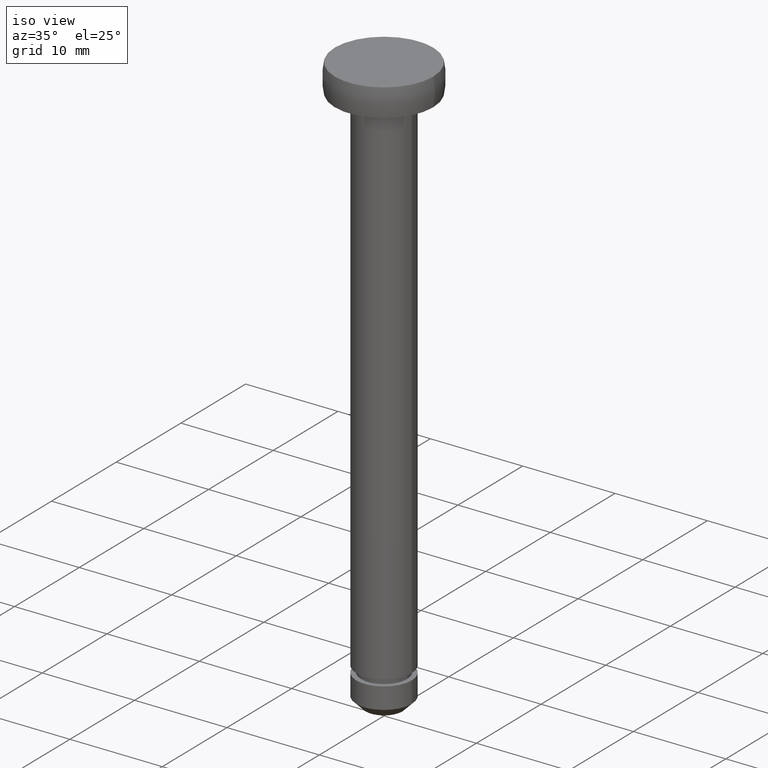
[diagram: clean part render]
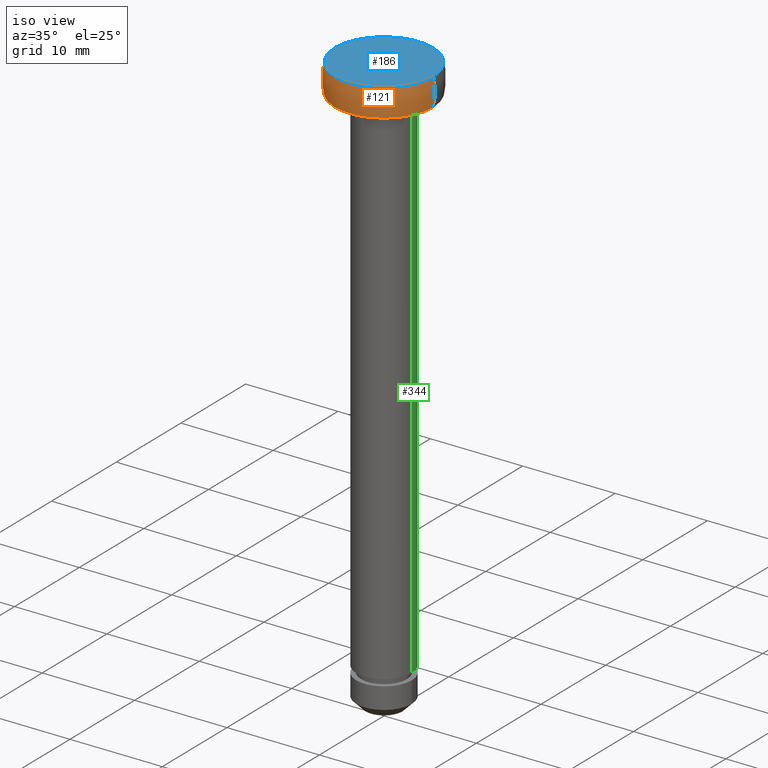
[diagram: same view with three faces highlighted in distinct colors, each labeled with its STEP entity id]
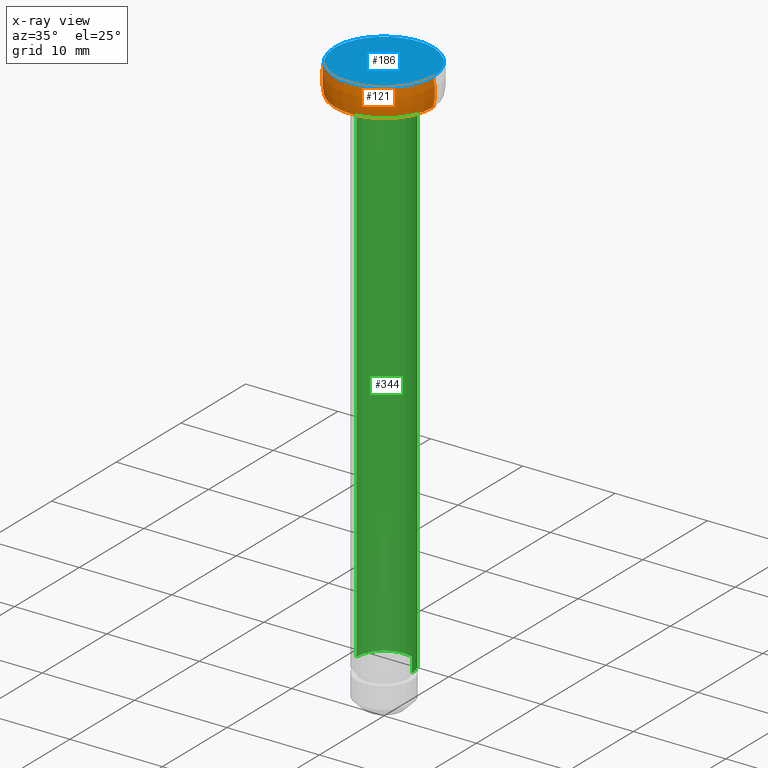
[diagram: x-ray of the same camera — body ghosted, the three highlighted faces saturated]
A machine part, iso view with three faces highlighted in distinct colors.
The next image is the same camera in x-ray (body ghosted, the three faces saturated) — at least one of them is partly hidden behind the body in this view.
Their STEP definitions:

[orange] entity #121 — the highlighted toroidal blend (fillet) surface has major radius 1.1428 mm and minor (blend) radius 6.6428 mm.
#3 = AXIS2_PLACEMENT_3D ( 'NONE', #32, #13, #445 ) ;
#13 = DIRECTION ( 'NONE',  ( 0.0000000000000000000, 0.0000000000000000000, -1.000000000000000000 ) ) ;
#32 = CARTESIAN_POINT ( 'NONE',  ( 0.0000000000000000000, 0.0000000000000000000, -3.000000018043550200 ) ) ;
#36 = FACE_OUTER_BOUND ( 'NONE', #390, .T. ) ;
#40 = DIRECTION ( 'NONE',  ( -1.000000000000000000, 0.0000000000000000000, 0.0000000000000000000 ) ) ;
#69 = DIRECTION ( 'NONE',  ( -1.000000000000000000, -1.224646799147353200E-016, 0.0000000000000000000 ) ) ;
#79 = CARTESIAN_POINT ( 'NONE',  ( -1.142766791230102100, -1.399485693051835900E-016, -1.500000009021820000 ) ) ;
#81 = CIRCLE ( 'NONE', #426, 6.642766791230087600 ) ;
#87 = VERTEX_POINT ( 'NONE', #326 ) ;
#90 = CARTESIAN_POINT ( 'NONE',  ( 0.0000000000000000000, 0.0000000000000000000, -1.500000009021820000 ) ) ;
#115 = CARTESIAN_POINT ( 'NONE',  ( 1.142766791230102100, 0.0000000000000000000, -1.500000009021820000 ) ) ;
#121 = ADVANCED_FACE ( 'NONE', ( #36 ), #376, .T. ) ;
#140 = CARTESIAN_POINT ( 'NONE',  ( -5.328427118366799500, 0.0000000000000000000, -6.132507696099412100E-014 ) ) ;
#146 = ORIENTED_EDGE ( 'NONE', *, *, #347, .T. ) ;
#167 = DIRECTION ( 'NONE',  ( 0.0000000000000000000, 0.0000000000000000000, -1.000000000000000000 ) ) ;
#171 = VERTEX_POINT ( 'NONE', #288 ) ;
#172 = VERTEX_POINT ( 'NONE', #329 ) ;
#177 = CIRCLE ( 'NONE', #242, 5.328427118366799500 ) ;
#194 = CIRCLE ( 'NONE', #297, 6.642766791230086700 ) ;
#214 = DIRECTION ( 'NONE',  ( -1.000000000000000000, 0.0000000000000000000, 0.0000000000000000000 ) ) ;
#237 = AXIS2_PLACEMENT_3D ( 'NONE', #90, #167, #214 ) ;
#242 = AXIS2_PLACEMENT_3D ( 'NONE', #447, #332, #40 ) ;
#262 = CIRCLE ( 'NONE', #3, 5.328427118366800400 ) ;
#264 = EDGE_CURVE ( 'NONE', #87, #172, #262, .T. ) ;
#274 = ORIENTED_EDGE ( 'NONE', *, *, #264, .F. ) ;
#288 = CARTESIAN_POINT ( 'NONE',  ( 5.328427118366799500, 6.525441214997859000E-016, -6.132507696099412100E-014 ) ) ;
#294 = DIRECTION ( 'NONE',  ( 0.0000000000000000000, 0.0000000000000000000, -1.000000000000000000 ) ) ;
#297 = AXIS2_PLACEMENT_3D ( 'NONE', #115, #385, #294 ) ;
#298 = DIRECTION ( 'NONE',  ( -1.224646799147353200E-016, 1.000000000000000000, 0.0000000000000000000 ) ) ;
#326 = CARTESIAN_POINT ( 'NONE',  ( 5.328427118366800400, 6.525441214997859000E-016, -3.000000018043550200 ) ) ;
#327 = ORIENTED_EDGE ( 'NONE', *, *, #366, .T. ) ;
#329 = CARTESIAN_POINT ( 'NONE',  ( -5.328427118366800400, 0.0000000000000000000, -3.000000018043550200 ) ) ;
#332 = DIRECTION ( 'NONE',  ( 0.0000000000000000000, 0.0000000000000000000, -1.000000000000000000 ) ) ;
#347 = EDGE_CURVE ( 'NONE', #171, #401, #177, .T. ) ;
#351 = ORIENTED_EDGE ( 'NONE', *, *, #411, .F. ) ;
#366 = EDGE_CURVE ( 'NONE', #401, #172, #194, .T. ) ;
#376 = TOROIDAL_SURFACE ( 'NONE', #237, -1.142766791230102100, 6.642766791230087600 ) ;
#385 = DIRECTION ( 'NONE',  ( -0.0000000000000000000, -1.000000000000000000, -0.0000000000000000000 ) ) ;
#390 = EDGE_LOOP ( 'NONE', ( #351, #146, #327, #274 ) ) ;
#401 = VERTEX_POINT ( 'NONE', #140 ) ;
#411 = EDGE_CURVE ( 'NONE', #171, #87, #81, .T. ) ;
#426 = AXIS2_PLACEMENT_3D ( 'NONE', #79, #298, #69 ) ;
#445 = DIRECTION ( 'NONE',  ( -1.000000000000000000, 0.0000000000000000000, 0.0000000000000000000 ) ) ;
#447 = CARTESIAN_POINT ( 'NONE',  ( 0.0000000000000000000, 0.0000000000000000000, -6.132507696099412100E-014 ) ) ;

[blue] entity #186 — the highlighted planar face has unit normal (0, 0, 1).
#11 = CARTESIAN_POINT ( 'NONE',  ( 0.0000000000000000000, 0.0000000000000000000, -6.132507696099412100E-014 ) ) ;
#40 = DIRECTION ( 'NONE',  ( -1.000000000000000000, 0.0000000000000000000, 0.0000000000000000000 ) ) ;
#59 = AXIS2_PLACEMENT_3D ( 'NONE', #11, #409, #290 ) ;
#84 = EDGE_CURVE ( 'NONE', #401, #171, #203, .T. ) ;
#139 = DIRECTION ( 'NONE',  ( 1.000000000000000000, 0.0000000000000000000, 0.0000000000000000000 ) ) ;
#140 = CARTESIAN_POINT ( 'NONE',  ( -5.328427118366799500, 0.0000000000000000000, -6.132507696099412100E-014 ) ) ;
#150 = DIRECTION ( 'NONE',  ( 0.0000000000000000000, -0.0000000000000000000, 1.000000000000000000 ) ) ;
#171 = VERTEX_POINT ( 'NONE', #288 ) ;
#177 = CIRCLE ( 'NONE', #242, 5.328427118366799500 ) ;
#186 = ADVANCED_FACE ( 'NONE', ( #386 ), #260, .T. ) ;
#195 = ORIENTED_EDGE ( 'NONE', *, *, #84, .F. ) ;
#203 = CIRCLE ( 'NONE', #59, 5.328427118366799500 ) ;
#242 = AXIS2_PLACEMENT_3D ( 'NONE', #447, #332, #40 ) ;
#260 = PLANE ( 'NONE',  #380 ) ;
#288 = CARTESIAN_POINT ( 'NONE',  ( 5.328427118366799500, 6.525441214997859000E-016, -6.132507696099412100E-014 ) ) ;
#290 = DIRECTION ( 'NONE',  ( -1.000000000000000000, 0.0000000000000000000, 0.0000000000000000000 ) ) ;
#295 = EDGE_LOOP ( 'NONE', ( #195, #363 ) ) ;
#332 = DIRECTION ( 'NONE',  ( 0.0000000000000000000, 0.0000000000000000000, -1.000000000000000000 ) ) ;
#347 = EDGE_CURVE ( 'NONE', #171, #401, #177, .T. ) ;
#363 = ORIENTED_EDGE ( 'NONE', *, *, #347, .F. ) ;
#380 = AXIS2_PLACEMENT_3D ( 'NONE', #418, #150, #139 ) ;
#386 = FACE_OUTER_BOUND ( 'NONE', #295, .T. ) ;
#401 = VERTEX_POINT ( 'NONE', #140 ) ;
#409 = DIRECTION ( 'NONE',  ( 0.0000000000000000000, 0.0000000000000000000, -1.000000000000000000 ) ) ;
#418 = CARTESIAN_POINT ( 'NONE',  ( 5.328427118366799500, 0.0000000000000000000, -6.132507823154353000E-014 ) ) ;
#447 = CARTESIAN_POINT ( 'NONE',  ( 0.0000000000000000000, 0.0000000000000000000, -6.132507696099412100E-014 ) ) ;

[green] entity #344 — the highlighted cylindrical surface (edge-blend (fillet) strip) has radius 3 mm, axis along (0, 0, -1).
#6 = CARTESIAN_POINT ( 'NONE',  ( -3.000000000000000000, 0.0000000000000000000, -6.132507950209293800E-014 ) ) ;
#14 = DIRECTION ( 'NONE',  ( 0.0000000000000000000, 0.0000000000000000000, -1.000000000000000000 ) ) ;
#17 = DIRECTION ( 'NONE',  ( 0.0000000000000000000, 0.0000000000000000000, -1.000000000000000000 ) ) ;
#25 = EDGE_CURVE ( 'NONE', #457, #91, #353, .T. ) ;
#44 = DIRECTION ( 'NONE',  ( -1.000000000000000000, 0.0000000000000000000, 0.0000000000000000000 ) ) ;
#53 = DIRECTION ( 'NONE',  ( 0.0000000000000000000, 0.0000000000000000000, -1.000000000000000000 ) ) ;
#58 = VECTOR ( 'NONE', #102, 1000.000000000000000 ) ;
#65 = VERTEX_POINT ( 'NONE', #373 ) ;
#76 = CIRCLE ( 'NONE', #355, 3.000000000000000000 ) ;
#80 = ORIENTED_EDGE ( 'NONE', *, *, #25, .F. ) ;
#91 = VERTEX_POINT ( 'NONE', #437 ) ;
#102 = DIRECTION ( 'NONE',  ( 0.0000000000000000000, 0.0000000000000000000, -1.000000000000000000 ) ) ;
#145 = VERTEX_POINT ( 'NONE', #402 ) ;
#193 = AXIS2_PLACEMENT_3D ( 'NONE', #408, #53, #315 ) ;
#217 = EDGE_CURVE ( 'NONE', #91, #65, #76, .T. ) ;
#220 = ORIENTED_EDGE ( 'NONE', *, *, #217, .F. ) ;
#230 = CARTESIAN_POINT ( 'NONE',  ( -3.000000000000000000, 0.0000000000000000000, -3.000000018043495100 ) ) ;
#235 = CARTESIAN_POINT ( 'NONE',  ( 0.0000000000000000000, 0.0000000000000000000, -59.00000001804349400 ) ) ;
#239 = EDGE_CURVE ( 'NONE', #145, #65, #312, .T. ) ;
#243 = ORIENTED_EDGE ( 'NONE', *, *, #359, .T. ) ;
#254 = VECTOR ( 'NONE', #364, 1000.000000000000000 ) ;
#271 = AXIS2_PLACEMENT_3D ( 'NONE', #350, #17, #378 ) ;
#292 = EDGE_LOOP ( 'NONE', ( #243, #395, #220, #80 ) ) ;
#311 = CARTESIAN_POINT ( 'NONE',  ( 3.000000000000000000, 3.673940397442059900E-016, -6.132507950209293800E-014 ) ) ;
#312 = LINE ( 'NONE', #311, #254 ) ;
#315 = DIRECTION ( 'NONE',  ( -1.000000000000000000, 0.0000000000000000000, 0.0000000000000000000 ) ) ;
#344 = ADVANCED_FACE ( 'NONE', ( #365 ), #384, .T. ) ;
#350 = CARTESIAN_POINT ( 'NONE',  ( 0.0000000000000000000, 0.0000000000000000000, -6.132507950209293800E-014 ) ) ;
#353 = LINE ( 'NONE', #6, #58 ) ;
#355 = AXIS2_PLACEMENT_3D ( 'NONE', #235, #14, #44 ) ;
#359 = EDGE_CURVE ( 'NONE', #457, #145, #453, .T. ) ;
#364 = DIRECTION ( 'NONE',  ( 0.0000000000000000000, 0.0000000000000000000, -1.000000000000000000 ) ) ;
#365 = FACE_OUTER_BOUND ( 'NONE', #292, .T. ) ;
#373 = CARTESIAN_POINT ( 'NONE',  ( 3.000000000000000000, 3.673940397442059900E-016, -59.00000001804349400 ) ) ;
#378 = DIRECTION ( 'NONE',  ( -1.000000000000000000, 0.0000000000000000000, 0.0000000000000000000 ) ) ;
#384 = CYLINDRICAL_SURFACE ( 'NONE', #271, 3.000000000000000000 ) ;
#395 = ORIENTED_EDGE ( 'NONE', *, *, #239, .T. ) ;
#402 = CARTESIAN_POINT ( 'NONE',  ( 3.000000000000000000, 3.673940397442059900E-016, -3.000000018043495100 ) ) ;
#408 = CARTESIAN_POINT ( 'NONE',  ( 0.0000000000000000000, 0.0000000000000000000, -3.000000018043495100 ) ) ;
#437 = CARTESIAN_POINT ( 'NONE',  ( -3.000000000000000000, 0.0000000000000000000, -59.00000001804349400 ) ) ;
#453 = CIRCLE ( 'NONE', #193, 3.000000000000000000 ) ;
#457 = VERTEX_POINT ( 'NONE', #230 ) ;